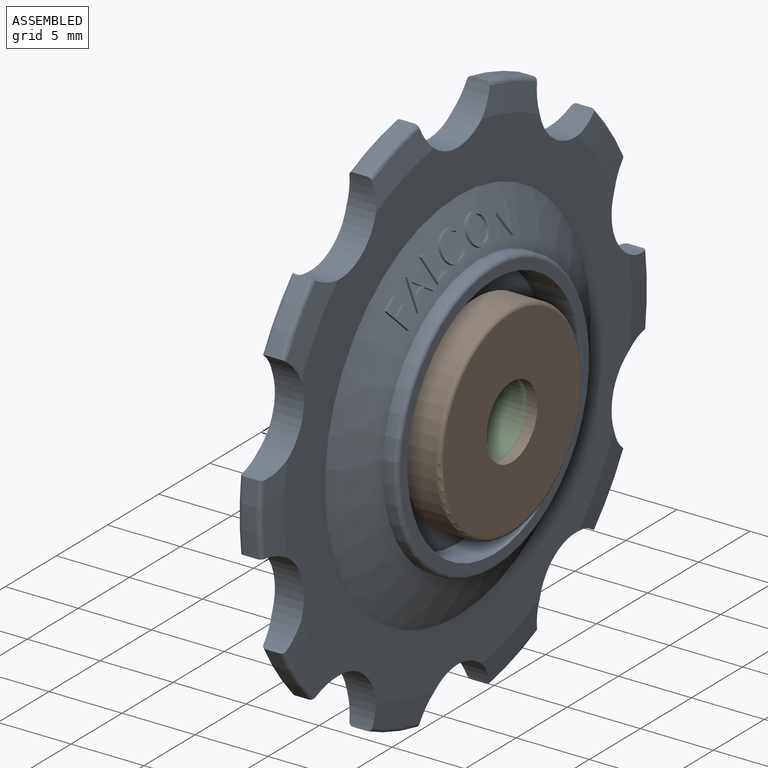
[diagram: assembled view]
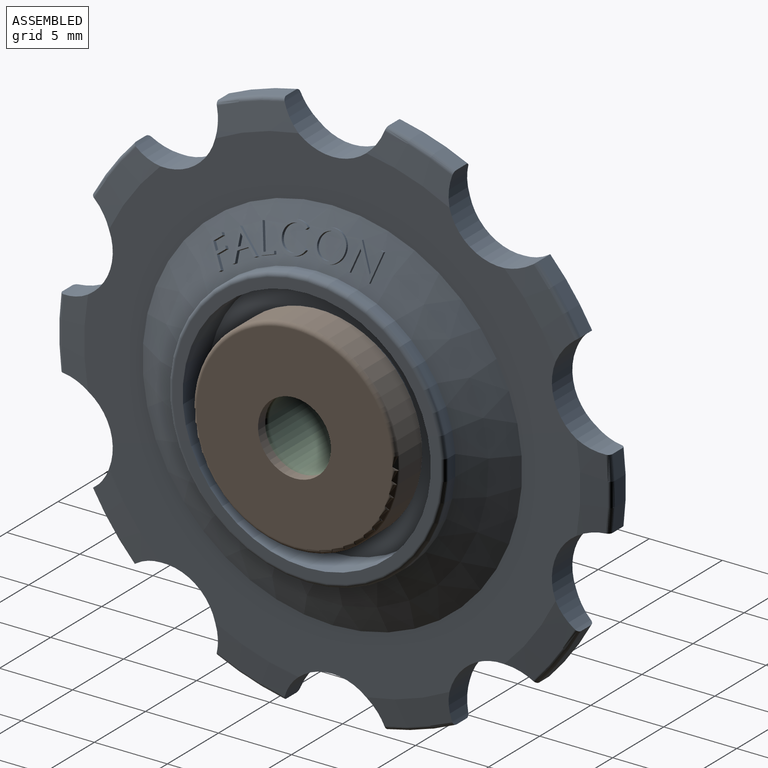
[diagram: assembled view, second angle]
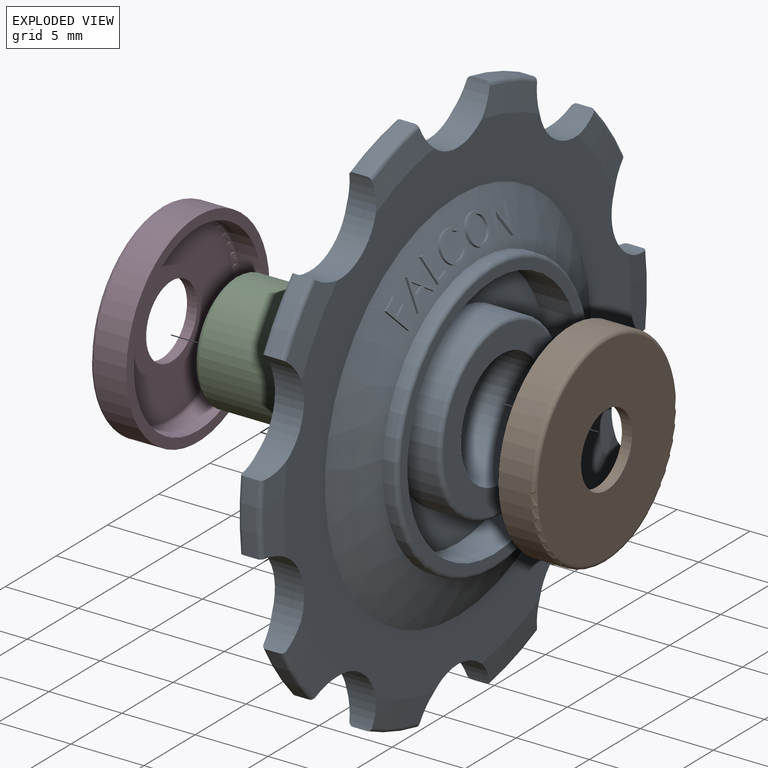
[diagram: exploded view]
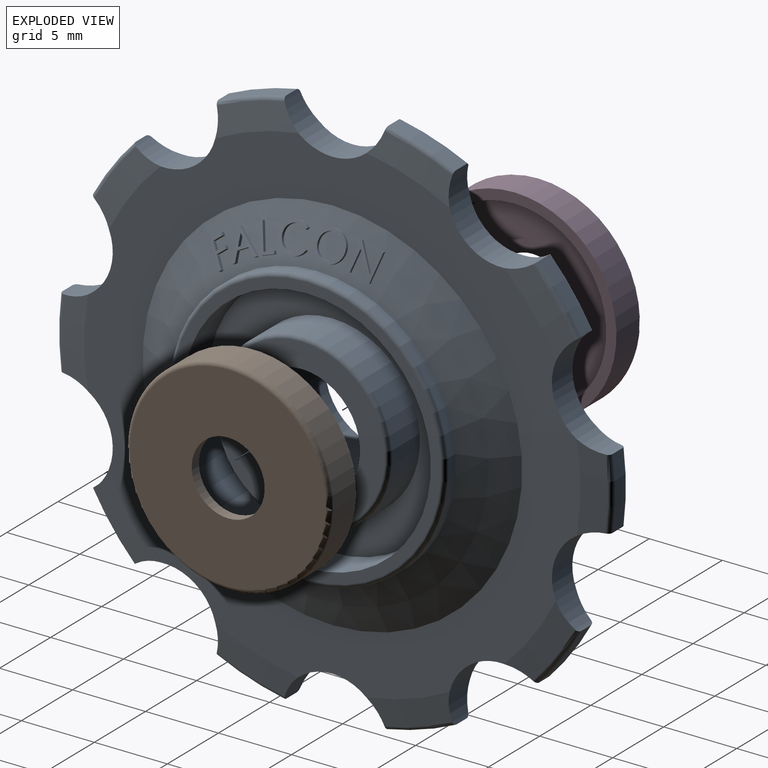
[diagram: exploded view, second angle]
ASSEMBLY  parts=4 mates=3
PART A: 145 faces, bbox 8x38.3x37.7 mm
  f0: cylinder r=19mm len=3.95mm, axis (-1,0,0), area 4.8mm2, adj f9,f11,f79,f80
  f1: cylinder r=19mm len=4.65mm, axis (-1,0,0), area 4.8mm2, adj f8,f10,f71,f80
  f2: cone r=17mm half-angle=82.9deg, axis (-1,0,0), area 9.6mm2, adj f4,f11,f79,f80
  f3: cone r=17mm half-angle=82.9deg, axis (-1,0,0), area 9.6mm2, adj f4,f10,f71,f80
  f4: plane 34x33.68mm, normal (1,0,0), area 345.4mm2, adj f2,f3,f13,f18,f23,f28,f33,f38
  f5: plane 34x33.68mm, normal (-1,0,0), area 345.4mm2, adj f6,f7,f14,f19,f24,f29,f34,f39
  f6: cone r=19mm half-angle=82.9deg, axis (1,0,0), area 9.6mm2, adj f5,f9,f79,f80
  f7: cone r=19mm half-angle=82.9deg, axis (1,0,0), area 9.6mm2, adj f5,f8,f71,f80
  f8: torus R=18.7mm, axis (1,0,0), area 2.1mm2, adj f1,f7,f71,f80
  f9: torus R=18.7mm, axis (1,0,0), area 2.1mm2, adj f0,f6,f79,f80
  f10: torus R=18.7mm, axis (1,0,0), area 2.1mm2, adj f1,f3,f71,f80
  f11: torus R=18.7mm, axis (1,0,0), area 2.1mm2, adj f0,f2,f79,f80
  f12: cylinder r=19mm len=4.88mm, axis (-1,0,0), area 4.8mm2, adj f15,f16,f78,f79
  f13: cone r=17mm half-angle=82.9deg, axis (-1,0,0), area 9.6mm2, adj f4,f16,f78,f79
  f14: cone r=19mm half-angle=82.9deg, axis (1,0,0), area 9.6mm2, adj f5,f15,f78,f79
  f15: torus R=18.7mm, axis (1,0,0), area 2.1mm2, adj f12,f14,f78,f79
  f16: torus R=18.7mm, axis (1,0,0), area 2.1mm2, adj f12,f13,f78,f79
  f17: cylinder r=19mm len=3.95mm, axis (-1,0,0), area 4.8mm2, adj f20,f21,f77,f78
  f18: cone r=17mm half-angle=82.9deg, axis (-1,0,0), area 9.6mm2, adj f4,f21,f77,f78
  f19: cone r=19mm half-angle=82.9deg, axis (1,0,0), area 9.6mm2, adj f5,f20,f77,f78
  f20: torus R=18.7mm, axis (1,0,0), area 2.1mm2, adj f17,f19,f77,f78
  f21: torus R=18.7mm, axis (1,0,0), area 2.1mm2, adj f17,f18,f77,f78
  f22: cylinder r=19mm len=4.65mm, axis (-1,0,0), area 4.8mm2, adj f25,f26,f76,f77
  f23: cone r=17mm half-angle=82.9deg, axis (-1,0,0), area 9.6mm2, adj f4,f26,f76,f77
  f24: cone r=19mm half-angle=82.9deg, axis (1,0,0), area 9.6mm2, adj f5,f25,f76,f77
  f25: torus R=18.7mm, axis (1,0,0), area 2.1mm2, adj f22,f24,f76,f77
  f26: torus R=18.7mm, axis (1,0,0), area 2.1mm2, adj f22,f23,f76,f77
  f27: cylinder r=19mm len=4.65mm, axis (-1,0,0), area 4.8mm2, adj f30,f31,f75,f76
  f28: cone r=17mm half-angle=82.9deg, axis (-1,0,0), area 9.6mm2, adj f4,f31,f75,f76
  f29: cone r=19mm half-angle=82.9deg, axis (1,0,0), area 9.6mm2, adj f5,f30,f75,f76
  f30: torus R=18.7mm, axis (1,0,0), area 2.1mm2, adj f27,f29,f75,f76
  f31: torus R=18.7mm, axis (1,0,0), area 2.1mm2, adj f27,f28,f75,f76
  f32: cylinder r=19mm len=3.95mm, axis (-1,0,0), area 4.8mm2, adj f35,f36,f74,f75
  f33: cone r=17mm half-angle=82.9deg, axis (-1,0,0), area 9.6mm2, adj f4,f36,f74,f75
  f34: cone r=19mm half-angle=82.9deg, axis (1,0,0), area 9.6mm2, adj f5,f35,f74,f75
  f35: torus R=18.7mm, axis (1,0,0), area 2.1mm2, adj f32,f34,f74,f75
  f36: torus R=18.7mm, axis (1,0,0), area 2.1mm2, adj f32,f33,f74,f75
  f37: cylinder r=19mm len=4.88mm, axis (-1,0,0), area 4.8mm2, adj f40,f41,f73,f74
  f38: cone r=17mm half-angle=82.9deg, axis (-1,0,0), area 9.6mm2, adj f4,f41,f73,f74
  f39: cone r=19mm half-angle=82.9deg, axis (1,0,0), area 9.6mm2, adj f5,f40,f73,f74
  f40: torus R=18.7mm, axis (1,0,0), area 2.1mm2, adj f37,f39,f73,f74
  f41: torus R=18.7mm, axis (1,0,0), area 2.1mm2, adj f37,f38,f73,f74
  f42: cylinder r=19mm len=3.95mm, axis (-1,0,0), area 4.8mm2, adj f45,f46,f72,f73
  f43: cone r=17mm half-angle=82.9deg, axis (-1,0,0), area 9.6mm2, adj f4,f46,f72,f73
  f44: cone r=19mm half-angle=82.9deg, axis (1,0,0), area 9.6mm2, adj f5,f45,f72,f73
  f45: torus R=18.7mm, axis (1,0,0), area 2.1mm2, adj f42,f44,f72,f73
  f46: torus R=18.7mm, axis (1,0,0), area 2.1mm2, adj f42,f43,f72,f73
  f47: cylinder r=19mm len=4.65mm, axis (-1,0,0), area 4.8mm2, adj f50,f51,f71,f72
  f48: cone r=17mm half-angle=82.9deg, axis (-1,0,0), area 9.6mm2, adj f4,f51,f71,f72
  f49: cone r=19mm half-angle=82.9deg, axis (1,0,0), area 9.6mm2, adj f5,f50,f71,f72
  f50: torus R=18.7mm, axis (1,0,0), area 2.1mm2, adj f47,f49,f71,f72
  f51: torus R=18.7mm, axis (1,0,0), area 2.1mm2, adj f47,f48,f71,f72
  f52: cone r=9.5mm half-angle=66.8deg, axis (-1,0,0), area 261.1mm2, adj f4,f53,f81,f82,f83,f84,f85,f86
  f53: cylinder r=9.5mm len=19mm, axis (-1,0,0), area 41.8mm2, adj f52,f70
  f54: plane 18.4x18.4mm, normal (1,0,0), area 38.9mm2, adj f55,f70
  f55: cylinder r=8.5mm len=17mm, axis (-1,0,0), area 133.5mm2, adj f54,f56
  f56: plane 17x17mm, normal (1,0,0), area 113.9mm2, adj f55,f57
  f57: cylinder r=6mm len=12mm, axis (-1,0,0), area 101.8mm2, adj f56,f69
  f58: plane 11.4x11.4mm, normal (1,0,0), area 51.8mm2, adj f59,f69
  f59: cylinder r=4mm len=8mm, axis (-1,0,0), area 201.1mm2, adj f58,f60
  f60: plane 11.4x11.4mm, normal (-1,0,0), area 51.8mm2, adj f59,f67
  f61: cylinder r=6mm len=12mm, axis (-1,0,0), area 101.8mm2, adj f62,f67
  f62: plane 17x17mm, normal (-1,0,0), area 113.9mm2, adj f61,f63
  f63: cylinder r=8.5mm len=17mm, axis (-1,0,0), area 133.5mm2, adj f62,f64
  f64: plane 18.4x18.4mm, normal (-1,0,0), area 38.9mm2, adj f63,f68
  f65: cylinder r=9.5mm len=19mm, axis (-1,0,0), area 41.8mm2, adj f66,f68
  f66: cone r=13mm half-angle=66.8deg, axis (1,0,0), area 269.2mm2, adj f5,f65
  f67: torus R=5.7mm, axis (1,0,0), area 17.4mm2, adj f60,f61
  f68: torus R=9.2mm, axis (1,0,0), area 27.8mm2, adj f64,f65
  f69: torus R=5.7mm, axis (-1,0,0), area 17.4mm2, adj f57,f58
  f70: torus R=9.2mm, axis (-1,0,0), area 27.8mm2, adj f53,f54
  f71: cylinder r=3.63mm len=7mm, axis (-1,0,0), area 17.7mm2, adj f1,f3,f4,f5,f7,f8,f10,f47
  f72: cylinder r=3.63mm len=5.9mm, axis (-1,0,0), area 17.7mm2, adj f4,f5,f42,f43,f44,f45,f46,f47
  f73: cylinder r=3.63mm len=6.66mm, axis (-1,0,0), area 17.7mm2, adj f4,f5,f37,f38,f39,f40,f41,f42
  f74: cylinder r=3.63mm len=6.66mm, axis (-1,0,0), area 17.7mm2, adj f4,f5,f32,f33,f34,f35,f36,f37
  f75: cylinder r=3.63mm len=5.9mm, axis (-1,0,0), area 17.7mm2, adj f4,f5,f27,f28,f29,f30,f31,f32
  f76: cylinder r=3.63mm len=7mm, axis (-1,0,0), area 17.7mm2, adj f4,f5,f22,f23,f24,f25,f26,f27
  f77: cylinder r=3.63mm len=5.9mm, axis (-1,0,0), area 17.7mm2, adj f4,f5,f17,f18,f19,f20,f21,f22
  f78: cylinder r=3.63mm len=6.66mm, axis (-1,0,0), area 17.7mm2, adj f4,f5,f12,f13,f14,f15,f16,f17
  f79: cylinder r=3.63mm len=6.66mm, axis (-1,0,0), area 17.7mm2, adj f0,f2,f4,f5,f6,f9,f11,f12
  f80: cylinder r=3.63mm len=5.9mm, axis (-1,0,0), area 17.7mm2, adj f0,f1,f2,f3,f4,f5,f6,f7
  f81: plane 0.26x0.2mm, normal (-0.01,0.79,0.62), area 0mm2, adj f52,f82,f90,f91
  f82: plane 0.69x0.57mm, normal (0.39,0.57,-0.72), area 0.2mm2, adj f52,f81,f83,f91
  f83: plane 0.51x0.43mm, normal (0.01,0.78,0.63), area 0.1mm2, adj f52,f82,f84,f91
  f84: plane 0.69x0.57mm, normal (-0.39,-0.57,0.72), area 0.2mm2, adj f52,f83,f85,f91
  f85: plane 0.26x0.21mm, normal (-0.01,0.79,0.62), area 0mm2, adj f52,f84,f86,f91
  f86: plane 0.69x0.58mm, normal (0.39,0.57,-0.72), area 0.2mm2, adj f52,f85,f87,f91
  f87: plane 0.76x0.61mm, normal (0.01,0.78,0.63), area 0.2mm2, adj f52,f86,f88,f91
  f88: plane 0.21x0.19mm, normal (0.39,0.57,-0.72), area 0mm2, adj f52,f87,f89,f91
  f89: plane 1.5x1.2mm, normal (-0.02,-0.78,-0.63), area 0.4mm2, adj f52,f88,f90,f91
  f90: plane 0.85x0.7mm, normal (-0.39,-0.57,0.72), area 0.2mm2, adj f52,f81,f89,f91
  f91: cone r=9.58mm half-angle=66.8deg, axis (-1,0,0), area 0.7mm2, adj f81,f82,f83,f84,f85,f86,f87,f88
  f92: plane 0.22x0.19mm, normal (0.39,0.44,-0.81), area 0mm2, adj f52,f93,f99,f100
  f93: plane 0.61x0.46mm, normal (0.18,-0.6,-0.78), area 0.1mm2, adj f52,f92,f94,f100
  f94: plane 0.81x0.5mm, normal (0.39,0.44,-0.81), area 0.2mm2, adj f52,f93,f95,f100
  f95: plane 0.76x0.44mm, normal (0.19,0.98,0.09), area 0.1mm2, adj f52,f94,f96,f100
  f96: plane 0.24x0.19mm, normal (0.39,0.44,-0.81), area 0mm2, adj f52,f95,f97,f100
  f97: bspline ~2.14x0.95mm, area 0.4mm2, adj f52,f96,f98,f100
  f98: plane 0.18x0.09mm, normal (-0.39,-0.44,0.81), area 0mm2, adj f52,f97,f99,f100
  f99: bspline ~1.74x1.24mm, area 0.4mm2, adj f52,f92,f98,f100
  f100: cone r=9.58mm half-angle=66.8deg, axis (-1,0,0), area 0.9mm2, adj f92,f93,f94,f95,f96,f97,f98,f99
  f101: plane 0.65x0.41mm, normal (-0.39,-0.44,0.81), area 0.1mm2, adj f100,f102,f103,f104
  f102: plane 0.67x0.5mm, normal (0.17,-0.61,-0.78), area 0.2mm2, adj f100,f101,f103,f104
  f103: plane 0.83x0.48mm, normal (0.18,0.98,0.09), area 0.2mm2, adj f100,f101,f102,f104
  f104: cone r=9.5mm half-angle=66.8deg, axis (-1,0,0), area 0.2mm2, adj f101,f102,f103
  f105: plane 1.63x0.89mm, normal (0.01,0.94,0.34), area 0.4mm2, adj f52,f106,f110,f111
  f106: plane 0.76x0.34mm, normal (-0.39,-0.31,0.87), area 0.2mm2, adj f52,f105,f107,f111
  f107: plane 0.26x0.24mm, normal (-0.02,0.94,0.33), area 0mm2, adj f52,f106,f108,f111
  f108: plane 0.96x0.42mm, normal (0.39,0.31,-0.87), area 0.2mm2, adj f52,f107,f109,f111
  f109: plane 1.8x0.97mm, normal (-0.02,-0.94,-0.34), area 0.4mm2, adj f52,f108,f110,f111
  f110: plane 0.22x0.19mm, normal (-0.39,-0.31,0.87), area 0mm2, adj f52,f105,f109,f111
  f111: cone r=9.58mm half-angle=66.8deg, axis (-1,0,0), area 0.5mm2, adj f105,f106,f107,f108,f109,f110
  f112: bspline ~0.78x0.31mm, area 0.2mm2, adj f52,f113,f122,f123
  f113: bspline ~1.02x0.74mm, area 0.3mm2, adj f52,f112,f114,f123
  f114: bspline ~1.03x0.7mm, area 0.3mm2, adj f52,f113,f115,f123
  f115: bspline ~0.65x0.5mm, area 0.2mm2, adj f52,f114,f116,f123
  f116: plane 0.23x0.18mm, normal (-0.33,0.46,0.82), area 0mm2, adj f52,f115,f117,f123
  f117: bspline ~0.8x0.59mm, area 0.2mm2, adj f52,f116,f118,f123
  f118: bspline ~0.89x0.33mm, area 0.2mm2, adj f52,f117,f119,f123
  f119: bspline ~0.67x0.47mm, area 0.2mm2, adj f52,f118,f120,f123
  f120: bspline ~1.22x0.92mm, area 0.3mm2, adj f52,f119,f121,f123
  f121: bspline ~0.95x0.33mm, area 0.2mm2, adj f52,f120,f122,f123
  f122: plane 0.24x0.22mm, normal (0.29,0.74,-0.61), area 0mm2, adj f52,f112,f121,f123
  f123: cone r=9.58mm half-angle=66.8deg, axis (-1,0,0), area 1.1mm2, adj f112,f113,f114,f115,f116,f117,f118,f119
  f124: bspline ~1.1x0.98mm, area 0.3mm2, adj f52,f125,f127,f128
  f125: bspline ~1.07x1.02mm, area 0.3mm2, adj f52,f124,f126,f128
  f126: bspline ~1.09x1.01mm, area 0.3mm2, adj f52,f125,f127,f128
  f127: bspline ~1.1x1.03mm, area 0.3mm2, adj f52,f124,f126,f128
  f128: cone r=9.58mm half-angle=66.8deg, axis (-1,0,0), area 1mm2, adj f124,f125,f126,f127,f129,f130,f131,f132
  f129: bspline ~0.89x0.81mm, area 0.3mm2, adj f128,f130,f132,f133
  f130: bspline ~0.89x0.82mm, area 0.3mm2, adj f128,f129,f131,f133
  f131: bspline ~0.9x0.82mm, area 0.3mm2, adj f128,f130,f132,f133
  f132: bspline ~0.88x0.83mm, area 0.3mm2, adj f128,f129,f131,f133
  f133: cone r=9.5mm half-angle=66.8deg, axis (-1,0,0), area 1.9mm2, adj f129,f130,f131,f132
  f134: plane 0.18x0.09mm, normal (-0.39,0.22,0.89), area 0mm2, adj f52,f135,f143,f144
  f135: bspline ~1.76x0.97mm, area 0.4mm2, adj f52,f134,f136,f144
  f136: plane 1.44x0.79mm, normal (0.03,-0.97,0.25), area 0.3mm2, adj f52,f135,f137,f144
  f137: plane 0.22x0.19mm, normal (-0.39,0.22,0.89), area 0mm2, adj f52,f136,f138,f144
  f138: plane 1.87x0.98mm, normal (-0.03,0.97,-0.26), area 0.4mm2, adj f52,f137,f139,f144
  f139: plane 0.19x0.09mm, normal (0.39,-0.22,-0.89), area 0mm2, adj f52,f138,f140,f144
  f140: bspline ~1.75x0.96mm, area 0.4mm2, adj f52,f139,f141,f144
  f141: plane 1.42x0.78mm, normal (0.01,0.97,-0.24), area 0.3mm2, adj f52,f140,f142,f144
  f142: plane 0.22x0.19mm, normal (0.39,-0.22,-0.89), area 0mm2, adj f52,f141,f143,f144
  f143: plane 1.86x0.97mm, normal (-0.02,-0.97,0.24), area 0.4mm2, adj f52,f134,f142,f144
  f144: cone r=9.58mm half-angle=66.8deg, axis (-1,0,0), area 1.1mm2, adj f134,f135,f136,f137,f138,f139,f140,f141
PART B: 8 faces, bbox 2.5x15.2x15.2 mm
  f0: plane 14x14mm, normal (1,0,0), area 29.2mm2, adj f1,f7
  f1: cylinder r=6.3mm len=12.6mm, axis (-1,0,0), area 59.4mm2, adj f0,f2
  f2: torus R=6mm, axis (-1,0,0), area 18.3mm2, adj f1,f3
  f3: plane 12x12mm, normal (1,0,0), area 93.5mm2, adj f2,f4
  f4: cylinder r=2.5mm len=5mm, axis (-1,0,0), area 11mm2, adj f3,f5
  f5: plane 13.4x13.4mm, normal (-1,0,0), area 121.4mm2, adj f4,f6
  f6: torus R=6.7mm, axis (-1,0,0), area 20.4mm2, adj f5,f7
  f7: cylinder r=7mm len=14mm, axis (-1,0,0), area 96.8mm2, adj f0,f6
PART C: 8 faces, bbox 8.7x8.7x8 mm
  f0: plane 7.2x7.2mm, normal (0,0,1), area 14.3mm2, adj f6,f7
  f1: plane 7.2x7.2mm, normal (0,0,-1), area 14.3mm2, adj f4,f5
  f2: cylinder r=4mm len=8mm, axis (0,0,-1), area 181mm2, adj f5,f7
  f3: cylinder r=2.5mm len=7.2mm, axis (0,0,-1), area 113.1mm2, adj f4,f6
  f4: torus R=2.9mm, axis (0,0,1), area 10.4mm2, adj f1,f3
  f5: torus R=3.6mm, axis (0,0,1), area 15.2mm2, adj f1,f2
  f6: torus R=2.9mm, axis (0,0,1), area 10.4mm2, adj f0,f3
  f7: torus R=3.6mm, axis (0,0,1), area 15.2mm2, adj f0,f2
PART D: same geometry as B
PLACE A at identity fixed
PLACE B rot(axis=(0,1,0),180deg) t=(4.7,0,0)mm
PLACE C rot(axis=(0,1,0),90deg) t=(0,0,0)mm
PLACE D t=(-4.7,0,0)mm
MATE fastened B.f1 <-> A.f0  axis (-1,0,0) through (4,0,0)mm
MATE fastened A.f0 <-> C.f2  axis (-1,0,0) through (0,0,0)mm
MATE fastened D.f1 <-> A.f0  axis (1,0,0) through (-4,0,0)mm
